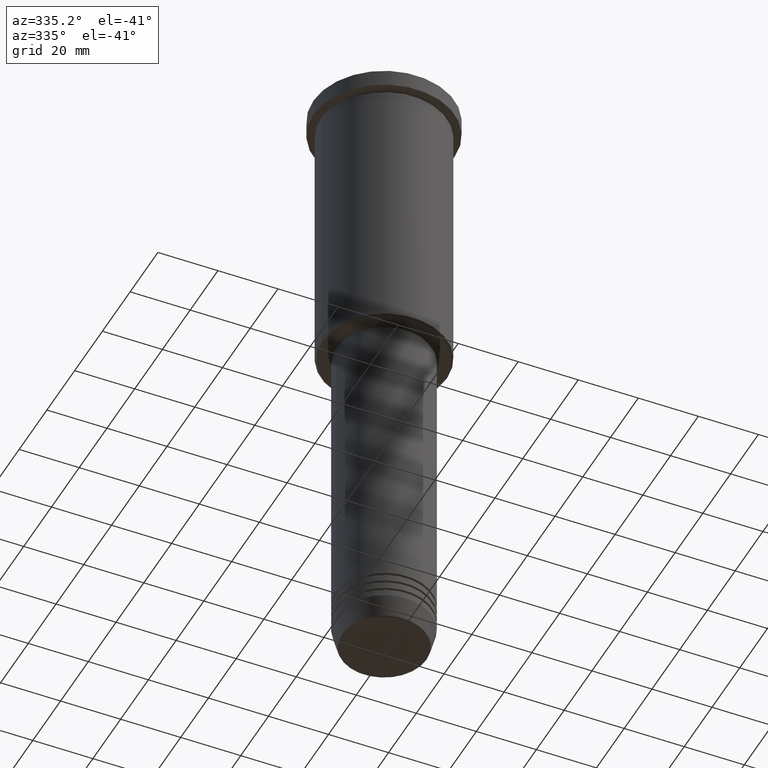
[diagram: clean part render]
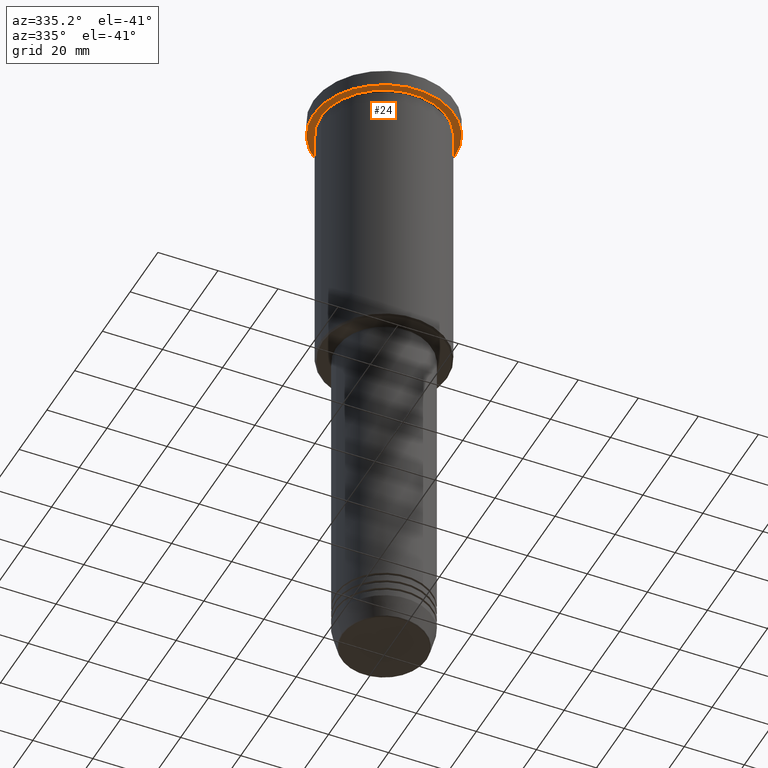
[diagram: same view with one face highlighted and labeled with its STEP entity id]
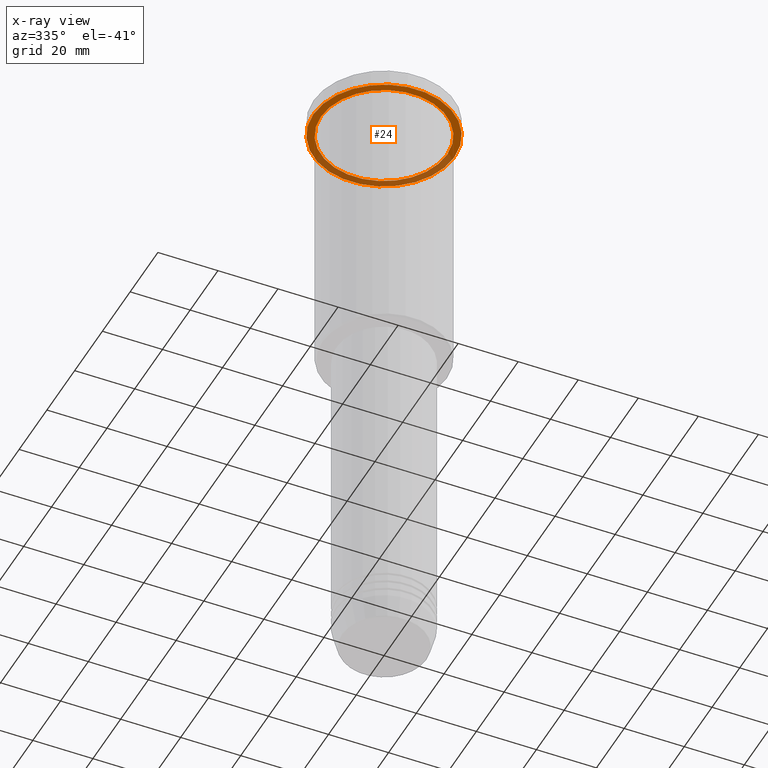
[diagram: x-ray of the same camera — body ghosted, the highlighted face saturated]
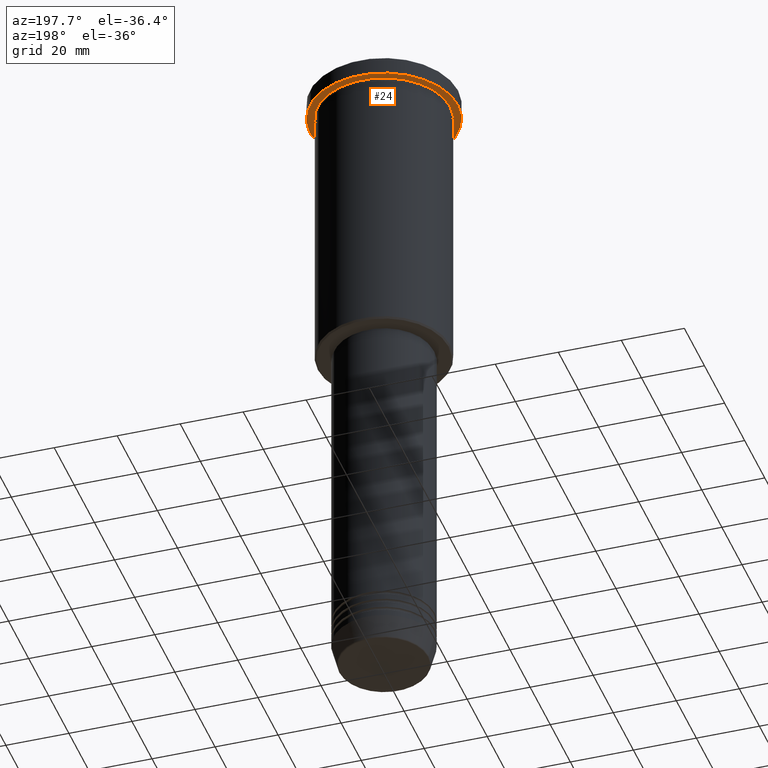
[diagram: same view with one face highlighted and labeled with its STEP entity id]
A machine part, auxiliary view. The second image highlights one B-rep face of the part: STEP entity #24.
The next image is the same camera in x-ray: the body ghosted, the highlighted face saturated — about 36% of this face is hidden behind the body in this view.
A second angle (auxiliary view) of the same face is appended — the face is thin or edge-on in the first view.
In plain terms, the highlighted planar face has unit normal (0, 0, -1).
Its self-contained STEP definition (entity closure, byte-faithful):
#5 = CARTESIAN_POINT ( 'NONE',  ( 0.000000000000000000, 0.000000000000000000, -5.999999999999994671 ) ) ;
#24 = ADVANCED_FACE ( 'NONE', ( #943, #26 ), #486, .T. ) ;
#26 = FACE_OUTER_BOUND ( 'NONE', #1080, .T. ) ;
#33 = DIRECTION ( 'NONE',  ( 0.000000000000000000, 0.000000000000000000, -1.000000000000000000 ) ) ;
#35 = CARTESIAN_POINT ( 'NONE',  ( -23.50000000000000000, 2.877919977996280320E-15, -5.999999999999994671 ) ) ;
#84 = AXIS2_PLACEMENT_3D ( 'NONE', #923, #120, #1030 ) ;
#120 = DIRECTION ( 'NONE',  ( -0.000000000000000000, -0.000000000000000000, 1.000000000000000000 ) ) ;
#121 = EDGE_LOOP ( 'NONE', ( #1004, #1146 ) ) ;
#211 = VERTEX_POINT ( 'NONE', #35 ) ;
#274 = CARTESIAN_POINT ( 'NONE',  ( 0.000000000000000000, 0.000000000000000000, -5.999999999999994671 ) ) ;
#281 = EDGE_CURVE ( 'NONE', #292, #1024, #1015, .T. ) ;
#292 = VERTEX_POINT ( 'NONE', #578 ) ;
#293 = DIRECTION ( 'NONE',  ( 1.000000000000000000, 0.000000000000000000, 0.000000000000000000 ) ) ;
#302 = EDGE_CURVE ( 'NONE', #211, #1173, #1098, .T. ) ;
#320 = CARTESIAN_POINT ( 'NONE',  ( 0.000000000000000000, 0.000000000000000000, -5.999999999999994671 ) ) ;
#379 = EDGE_CURVE ( 'NONE', #1024, #292, #778, .T. ) ;
#437 = AXIS2_PLACEMENT_3D ( 'NONE', #320, #744, #668 ) ;
#477 = ORIENTED_EDGE ( 'NONE', *, *, #302, .F. ) ;
#486 = PLANE ( 'NONE',  #875 ) ;
#546 = DIRECTION ( 'NONE',  ( -1.000000000000000000, 0.000000000000000000, 0.000000000000000000 ) ) ;
#578 = CARTESIAN_POINT ( 'NONE',  ( -21.00000000000000000, 0.000000000000000000, -5.999999999999994671 ) ) ;
#605 = AXIS2_PLACEMENT_3D ( 'NONE', #274, #1172, #546 ) ;
#609 = ORIENTED_EDGE ( 'NONE', *, *, #932, .F. ) ;
#668 = DIRECTION ( 'NONE',  ( -1.000000000000000000, 0.000000000000000000, 0.000000000000000000 ) ) ;
#728 = CIRCLE ( 'NONE', #950, 23.50000000000000000 ) ;
#744 = DIRECTION ( 'NONE',  ( -0.000000000000000000, -0.000000000000000000, 1.000000000000000000 ) ) ;
#755 = DIRECTION ( 'NONE',  ( -1.000000000000000000, 0.000000000000000000, -0.000000000000000000 ) ) ;
#760 = CARTESIAN_POINT ( 'NONE',  ( 0.000000000000000000, 23.50000000000000000, -5.999999999999994671 ) ) ;
#778 = CIRCLE ( 'NONE', #605, 21.00000000000000000 ) ;
#875 = AXIS2_PLACEMENT_3D ( 'NONE', #760, #33, #755 ) ;
#923 = CARTESIAN_POINT ( 'NONE',  ( 0.000000000000000000, 0.000000000000000000, -5.999999999999994671 ) ) ;
#932 = EDGE_CURVE ( 'NONE', #1173, #211, #728, .T. ) ;
#943 = FACE_BOUND ( 'NONE', #121, .T. ) ;
#947 = CARTESIAN_POINT ( 'NONE',  ( 23.50000000000000000, 0.000000000000000000, -5.999999999999994671 ) ) ;
#950 = AXIS2_PLACEMENT_3D ( 'NONE', #5, #1097, #293 ) ;
#980 = CARTESIAN_POINT ( 'NONE',  ( 21.00000000000000000, 2.571758278209441661E-15, -5.999999999999994671 ) ) ;
#1004 = ORIENTED_EDGE ( 'NONE', *, *, #281, .T. ) ;
#1015 = CIRCLE ( 'NONE', #437, 21.00000000000000000 ) ;
#1024 = VERTEX_POINT ( 'NONE', #980 ) ;
#1030 = DIRECTION ( 'NONE',  ( 1.000000000000000000, 0.000000000000000000, 0.000000000000000000 ) ) ;
#1080 = EDGE_LOOP ( 'NONE', ( #609, #477 ) ) ;
#1097 = DIRECTION ( 'NONE',  ( -0.000000000000000000, -0.000000000000000000, 1.000000000000000000 ) ) ;
#1098 = CIRCLE ( 'NONE', #84, 23.50000000000000000 ) ;
#1146 = ORIENTED_EDGE ( 'NONE', *, *, #379, .T. ) ;
#1172 = DIRECTION ( 'NONE',  ( -0.000000000000000000, -0.000000000000000000, 1.000000000000000000 ) ) ;
#1173 = VERTEX_POINT ( 'NONE', #947 ) ;